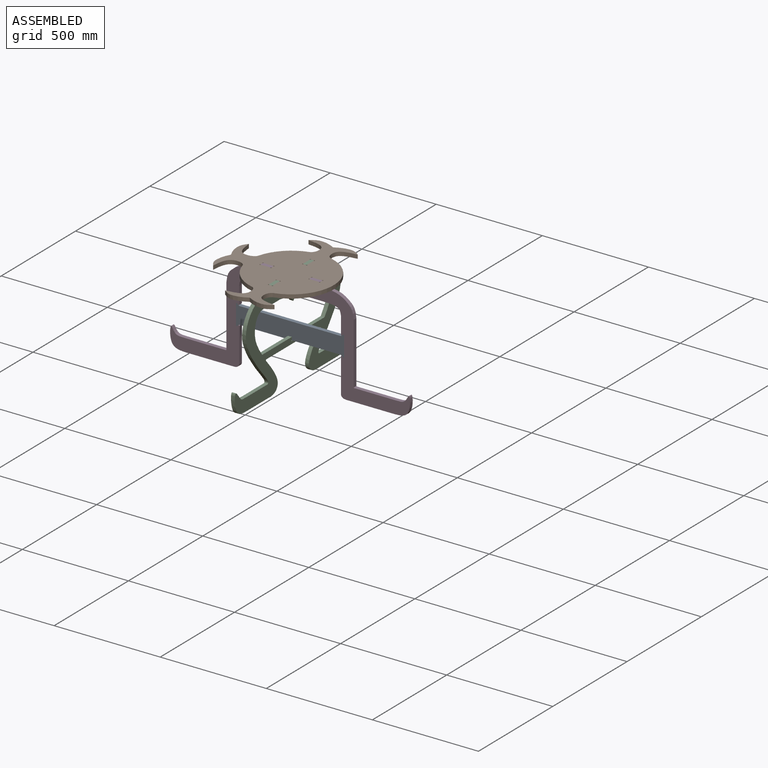
[diagram: assembled view]
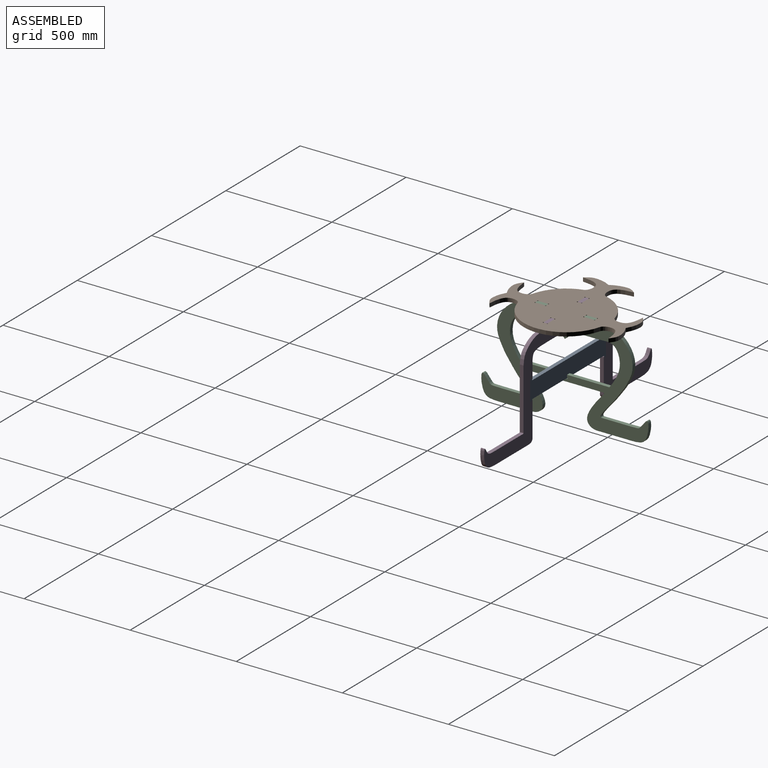
[diagram: assembled view, second angle]
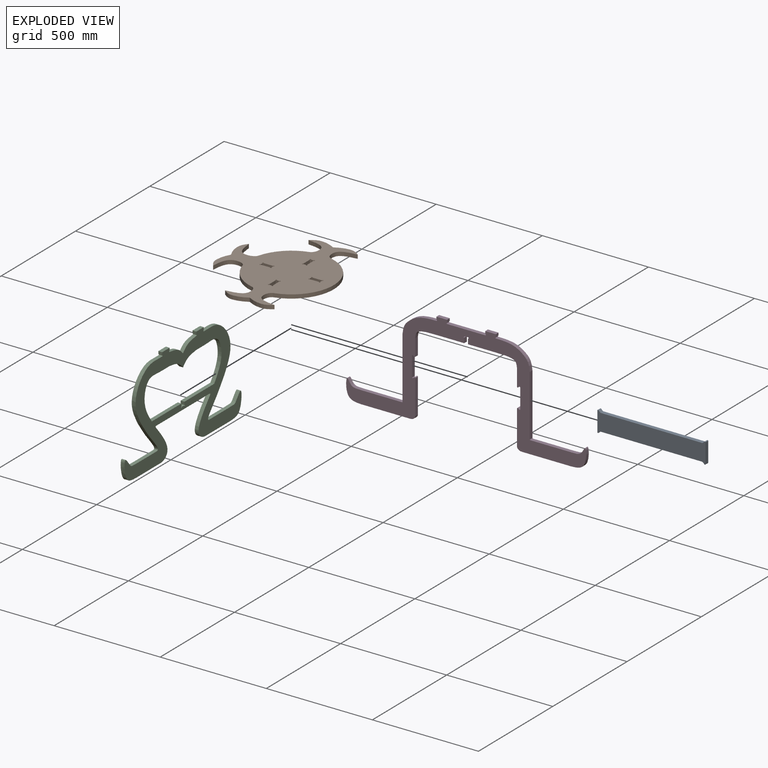
[diagram: exploded view]
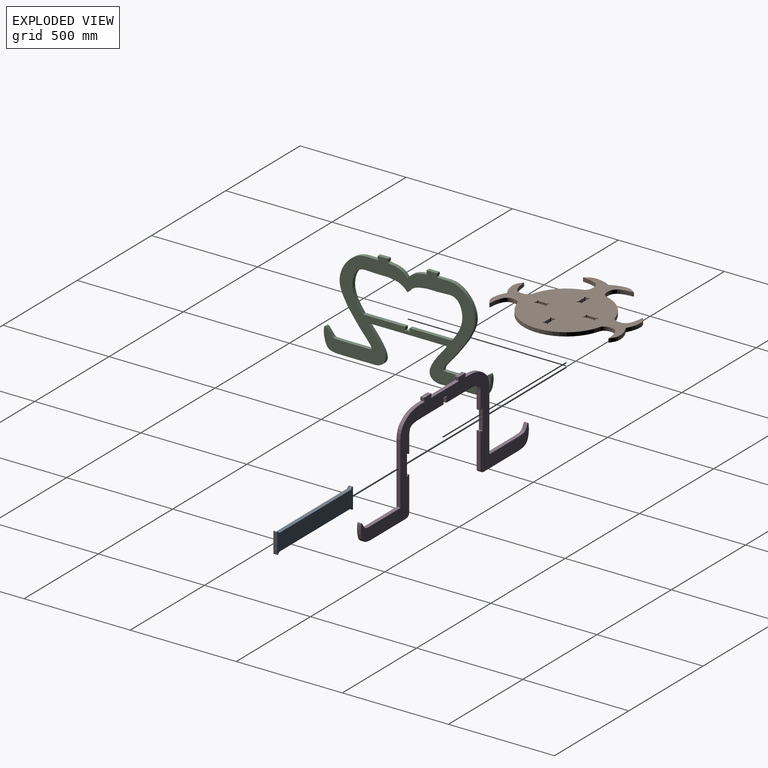
[diagram: exploded view, second angle]
ASSEMBLY  parts=4 mates=3
PART A: 18 faces, bbox 510x98.3x18 mm
  f0: plane 477.82x18mm, normal (0,1,0), area 8600.7mm2, adj f8,f9,f10,f17
  f1: plane 18x9.24mm, normal (0.64,0.77,0), area 217mm2, adj f8,f9,f10,f11
  f2: plane 92.31x18mm, normal (-1,0,0), area 1661.5mm2, adj f8,f9,f11,f12
  f3: plane 18x9.24mm, normal (0.64,-0.77,0), area 217mm2, adj f8,f9,f12,f13
  f4: plane 477.82x18mm, normal (0,-1,0), area 8600.7mm2, adj f8,f9,f13,f14
  f5: plane 18x9.24mm, normal (-0.64,-0.77,0), area 217mm2, adj f8,f9,f14,f15
  f6: plane 92.31x18mm, normal (1,0,0), area 1661.5mm2, adj f8,f9,f15,f16
  f7: plane 18x9.24mm, normal (-0.64,0.77,0), area 217mm2, adj f8,f9,f16,f17
  f8: plane 510x98.31mm, normal (0,0,1), area 41141.8mm2, adj f0,f1,f2,f3,f4,f5,f6,f7
  f9: plane 510x98.31mm, normal (0,0,-1), area 41141.8mm2, adj f0,f1,f2,f3,f4,f5,f6,f7
  f10: cylinder r=3mm len=18mm, axis (0,0,1), area 37.7mm2, adj f0,f1,f8,f9
  f11: cylinder r=3mm len=18mm, axis (0,0,-1), area 122.5mm2, adj f1,f2,f8,f9
  f12: cylinder r=3mm len=18mm, axis (0,0,-1), area 122.5mm2, adj f2,f3,f8,f9
  f13: cylinder r=3mm len=18mm, axis (0,0,1), area 37.7mm2, adj f3,f4,f8,f9
  f14: cylinder r=3mm len=18mm, axis (0,0,-1), area 37.7mm2, adj f4,f5,f8,f9
  f15: cylinder r=3mm len=18mm, axis (0,0,-1), area 122.5mm2, adj f5,f6,f8,f9
  f16: cylinder r=3mm len=18mm, axis (0,0,-1), area 122.5mm2, adj f6,f7,f8,f9
  f17: cylinder r=3mm len=18mm, axis (0,0,-1), area 37.7mm2, adj f0,f7,f8,f9
PART B: 49 faces, bbox 507.1x18x606.2 mm
  f0: plane 44x18mm, normal (0,0,1), area 792mm2, adj f1,f46,f47,f48
  f1: cylinder r=3mm len=18mm, axis (0,1,0), area 254.5mm2, adj f0,f2,f47,f48
  f2: plane 18x12mm, normal (1,0,0), area 216mm2, adj f1,f3,f47,f48
  f3: cylinder r=3mm len=18mm, axis (0,1,0), area 254.5mm2, adj f2,f4,f47,f48
  f4: plane 44x18mm, normal (0,0,-1), area 792mm2, adj f3,f5,f47,f48
  f5: cylinder r=3mm len=18mm, axis (0,1,0), area 254.5mm2, adj f4,f6,f47,f48
  f6: plane 18x12mm, normal (-1,0,0), area 216mm2, adj f5,f46,f47,f48
  f7: plane 44x18mm, normal (0,0,-1), area 792mm2, adj f8,f42,f47,f48
  f8: cylinder r=3mm len=18mm, axis (0,1,0), area 254.5mm2, adj f7,f9,f47,f48
  f9: plane 18x12mm, normal (-1,0,0), area 216mm2, adj f8,f10,f47,f48
  f10: cylinder r=3mm len=18mm, axis (0,1,0), area 254.5mm2, adj f9,f11,f47,f48
  f11: plane 44x18mm, normal (0,0,1), area 792mm2, adj f10,f12,f47,f48
  f12: cylinder r=3mm len=18mm, axis (0,1,0), area 254.5mm2, adj f11,f13,f47,f48
  f13: plane 18x12mm, normal (1,0,0), area 216mm2, adj f12,f42,f47,f48
  f14: plane 44x18mm, normal (1,0,0), area 792mm2, adj f15,f43,f47,f48
  f15: cylinder r=3mm len=18mm, axis (0,1,0), area 254.5mm2, adj f14,f16,f47,f48
  f16: plane 18x12mm, normal (0,0,-1), area 216mm2, adj f15,f17,f47,f48
  f17: cylinder r=3mm len=18mm, axis (0,1,0), area 254.5mm2, adj f16,f18,f47,f48
  f18: plane 44x18mm, normal (-1,0,0), area 792mm2, adj f17,f19,f47,f48
  f19: cylinder r=3mm len=18mm, axis (0,1,0), area 254.5mm2, adj f18,f20,f47,f48
  f20: plane 18x12mm, normal (0,0,1), area 216mm2, adj f19,f43,f47,f48
  f21: cylinder r=3mm len=18mm, axis (0,1,0), area 254.5mm2, adj f22,f44,f47,f48
  f22: plane 44x18mm, normal (1,0,0), area 792mm2, adj f21,f23,f47,f48
  f23: cylinder r=3mm len=18mm, axis (0,1,0), area 254.5mm2, adj f22,f24,f47,f48
  f24: plane 18x12mm, normal (0,0,-1), area 216mm2, adj f23,f25,f47,f48
  f25: cylinder r=3mm len=18mm, axis (0,1,0), area 254.5mm2, adj f24,f26,f47,f48
  f26: plane 44x18mm, normal (-1,0,0), area 792mm2, adj f25,f27,f47,f48
  f27: cylinder r=3mm len=18mm, axis (0,1,0), area 254.5mm2, adj f26,f44,f47,f48
  f28: extruded ~87.7x86.26mm, area 2853.3mm2, adj f29,f45,f47,f48
  f29: extruded ~116.19x20.77mm, area 2260.6mm2, adj f28,f30,f47,f48
  f30: extruded ~116.19x20.77mm, area 2260.6mm2, adj f29,f31,f47,f48
  f31: extruded ~87.7x86.26mm, area 2853.3mm2, adj f30,f32,f47,f48
  f32: cylinder r=200mm len=140.36mm, axis (0,1,0), area 3709.1mm2, adj f31,f33,f47,f48
  f33: extruded ~92.19x86.9mm, area 2927.5mm2, adj f32,f34,f47,f48
  f34: extruded ~120.27x20.75mm, area 2331.7mm2, adj f33,f35,f47,f48
  f35: extruded ~120.27x20.75mm, area 2331.7mm2, adj f34,f36,f47,f48
  f36: extruded ~92.19x86.9mm, area 2927.5mm2, adj f35,f37,f47,f48
  f37: cylinder r=200mm len=139.88mm, axis (0,1,0), area 3700.2mm2, adj f36,f38,f47,f48
  f38: extruded ~87.08x86.17mm, area 2843.7mm2, adj f37,f39,f47,f48
  f39: extruded ~116.42x20.77mm, area 2264.7mm2, adj f38,f40,f47,f48
  f40: extruded ~116.42x20.77mm, area 2264.7mm2, adj f39,f41,f47,f48
  f41: extruded ~87.08x86.17mm, area 2843.7mm2, adj f40,f45,f47,f48
  f42: cylinder r=3mm len=18mm, axis (0,1,0), area 254.5mm2, adj f7,f13,f47,f48
  f43: cylinder r=3mm len=18mm, axis (0,1,0), area 254.5mm2, adj f14,f20,f47,f48
  f44: plane 18x12mm, normal (0,0,1), area 216mm2, adj f21,f27,f47,f48
  f45: cylinder r=200mm len=386.12mm, axis (0,1,0), area 9407.5mm2, adj f28,f41,f47,f48
  f46: cylinder r=3mm len=18mm, axis (0,1,0), area 254.5mm2, adj f0,f6,f47,f48
  f47: plane 606.2x507.14mm, normal (0,-1,0), area 152632.3mm2, adj f0,f1,f2,f3,f4,f5,f6,f7
  f48: plane 606.2x507.14mm, normal (0,1,0), area 152632.3mm2, adj f0,f1,f2,f3,f4,f5,f6,f7
PART C: 44 faces, bbox 18x796.6x470.5 mm
  f0: cylinder r=3mm len=18mm, axis (-1,0,0), area 169.6mm2, adj f1,f39,f40,f41
  f1: plane 18x12mm, normal (0,1,0), area 216mm2, adj f0,f2,f40,f41
  f2: plane 50x18mm, normal (0,0,1), area 900mm2, adj f1,f3,f40,f41
  f3: plane 18x12mm, normal (0,-1,0), area 216mm2, adj f2,f4,f40,f41
  f4: cylinder r=3mm len=18mm, axis (-1,0,0), area 169.6mm2, adj f3,f5,f40,f41
  f5: extruded ~250.63x179.58mm, area 6912.1mm2, adj f4,f6,f40,f41
  f6: plane 30x21.68mm, normal (0,-0.81,-0.59), area 666.2mm2, adj f5,f7,f40,f41
  f7: extruded ~110x79.71mm, area 2538.6mm2, adj f6,f8,f40,f41
  f8: plane 133.89x18mm, normal (0,0,1), area 2410mm2, adj f7,f9,f40,f41
  f9: extruded ~102.82x85.56mm, area 4713.8mm2, adj f8,f10,f40,f41
  f10: plane 142.06x18mm, normal (0,0,-1), area 2557.1mm2, adj f9,f11,f40,f41
  f11: extruded ~165.44x79.45mm, area 4212.5mm2, adj f10,f40,f41,f42
  f12: plane 363.48x18mm, normal (0,0,-1), area 6542.7mm2, adj f40,f41,f42,f43
  f13: extruded ~165.44x79.45mm, area 4212.5mm2, adj f14,f40,f41,f43
  f14: plane 142.06x18mm, normal (0,0,-1), area 2557.1mm2, adj f13,f15,f40,f41
  f15: extruded ~102.82x85.56mm, area 4713.8mm2, adj f14,f16,f40,f41
  f16: plane 133.89x18mm, normal (0,0,1), area 2410mm2, adj f15,f17,f40,f41
  f17: extruded ~110x79.71mm, area 2538.6mm2, adj f16,f18,f40,f41
  f18: plane 30x21.68mm, normal (0,0.81,-0.59), area 666.2mm2, adj f17,f19,f40,f41
  f19: extruded ~250.63x179.58mm, area 6912.1mm2, adj f18,f20,f40,f41
  f20: cylinder r=3mm len=18mm, axis (-1,0,0), area 169.6mm2, adj f19,f21,f40,f41
  f21: plane 18x12mm, normal (0,1,0), area 216mm2, adj f20,f22,f40,f41
  f22: plane 50x18mm, normal (0,0,1), area 900mm2, adj f21,f23,f40,f41
  f23: plane 18x12mm, normal (0,-1,0), area 216mm2, adj f22,f24,f40,f41
  f24: cylinder r=3mm len=18mm, axis (-1,0,0), area 169.6mm2, adj f23,f25,f40,f41
  f25: extruded ~90x40mm, area 1831.8mm2, adj f24,f39,f40,f41
  f26: cylinder r=3mm len=18mm, axis (-1,0,0), area 254.5mm2, adj f27,f38,f40,f41
  f27: plane 18x12mm, normal (0,1,0), area 216mm2, adj f26,f28,f40,f41
  f28: plane 200x18mm, normal (0,0,1), area 3600mm2, adj f27,f29,f40,f41
  f29: extruded ~192.03x119.09mm, area 5328.8mm2, adj f28,f30,f40,f41
  f30: plane 50x18mm, normal (0,0,-1), area 900mm2, adj f29,f31,f40,f41
  f31: extruded ~90x40mm, area 1834mm2, adj f30,f32,f40,f41
  f32: extruded ~90x40mm, area 1834mm2, adj f31,f33,f40,f41
  f33: plane 50x18mm, normal (0,0,-1), area 900mm2, adj f32,f34,f40,f41
  f34: extruded ~192.03x119.09mm, area 5328.8mm2, adj f33,f35,f40,f41
  f35: plane 200x18mm, normal (0,0,1), area 3600mm2, adj f34,f36,f40,f41
  f36: plane 18x12mm, normal (0,-1,0), area 216mm2, adj f35,f37,f40,f41
  f37: cylinder r=3mm len=18mm, axis (-1,0,0), area 254.5mm2, adj f36,f38,f40,f41
  f38: plane 18x14mm, normal (0,0,1), area 252mm2, adj f26,f37,f40,f41
  f39: extruded ~90x40mm, area 1831.8mm2, adj f0,f25,f40,f41
  f40: plane 796.63x470.48mm, normal (1,0,0), area 119505.8mm2, adj f0,f1,f2,f3,f4,f5,f6,f7
  f41: plane 796.63x470.48mm, normal (-1,0,0), area 119505.8mm2, adj f0,f1,f2,f3,f4,f5,f6,f7
  f42: cylinder r=3mm len=18mm, axis (-1,0,0), area 123.4mm2, adj f11,f12,f40,f41
  f43: cylinder r=3mm len=18mm, axis (-1,0,0), area 123.4mm2, adj f12,f13,f40,f41
PART D: 58 faces, bbox 1139.1x468.1x18 mm
  f0: cylinder r=3mm len=18mm, axis (0,0,-1), area 169.6mm2, adj f1,f41,f42,f43
  f1: plane 18x12mm, normal (1,0,0), area 216mm2, adj f0,f2,f42,f43
  f2: plane 50x18mm, normal (0,1,0), area 900mm2, adj f1,f3,f42,f43
  f3: plane 18x12mm, normal (-1,0,0), area 216mm2, adj f2,f4,f42,f43
  f4: cylinder r=3mm len=18mm, axis (0,0,-1), area 169.6mm2, adj f3,f5,f42,f43
  f5: extruded ~160x100mm, area 3819.6mm2, adj f4,f6,f42,f43
  f6: plane 287x18mm, normal (-1,0,0), area 5166mm2, adj f5,f42,f43,f44
  f7: plane 192.25x18mm, normal (0,1,0), area 3460.4mm2, adj f8,f42,f43,f44
  f8: extruded ~94.18x70.24mm, area 4028.9mm2, adj f7,f9,f42,f43
  f9: plane 230x18mm, normal (0,-1,0), area 4140mm2, adj f8,f10,f42,f43
  f10: extruded ~25.42x24.95mm, area 755.6mm2, adj f9,f42,f43,f45
  f11: plane 153.51x18mm, normal (1,0,0), area 2763.2mm2, adj f42,f43,f45,f46
  f12: plane 18x5.14mm, normal (-0.64,0.77,0), area 120.9mm2, adj f42,f43,f46,f54
  f13: plane 92.31x18mm, normal (1,0,0), area 1661.5mm2, adj f42,f43,f54,f55
  f14: plane 18x5.14mm, normal (-0.64,-0.77,0), area 120.9mm2, adj f42,f43,f47,f55
  f15: plane 78.31x18mm, normal (1,0,0), area 1409.6mm2, adj f42,f43,f47,f48
  f16: extruded ~99.96x39.82mm, area 2202.9mm2, adj f17,f42,f43,f48
  f17: plane 131x18mm, normal (0,-1,0), area 2358mm2, adj f16,f18,f42,f43
  f18: plane 24x18mm, normal (1,0,0), area 432mm2, adj f17,f19,f42,f43
  f19: cylinder r=3mm len=18mm, axis (0,0,-1), area 169.6mm2, adj f18,f20,f42,f43
  f20: plane 18x18mm, normal (0,-1,0), area 324mm2, adj f19,f21,f42,f43
  f21: cylinder r=3mm len=18mm, axis (0,0,-1), area 169.6mm2, adj f20,f22,f42,f43
  f22: plane 24x18mm, normal (-1,0,0), area 432mm2, adj f21,f23,f42,f43
  f23: plane 131x18mm, normal (0,-1,0), area 2358mm2, adj f22,f24,f42,f43
  f24: extruded ~99.96x39.82mm, area 2202.9mm2, adj f23,f42,f43,f49
  f25: plane 78.31x18mm, normal (-1,0,0), area 1409.6mm2, adj f42,f43,f49,f50
  f26: plane 18x5.14mm, normal (0.64,-0.77,0), area 120.9mm2, adj f42,f43,f50,f56
  f27: plane 92.31x18mm, normal (-1,0,0), area 1661.5mm2, adj f42,f43,f56,f57
  f28: plane 18x5.14mm, normal (0.64,0.77,0), area 120.9mm2, adj f42,f43,f51,f57
  f29: plane 153.51x18mm, normal (-1,0,0), area 2763.2mm2, adj f42,f43,f51,f52
  f30: extruded ~25.42x24.95mm, area 755.6mm2, adj f31,f42,f43,f52
  f31: plane 230x18mm, normal (0,-1,0), area 4140mm2, adj f30,f32,f42,f43
  f32: extruded ~94.18x70.24mm, area 4028.9mm2, adj f31,f33,f42,f43
  f33: plane 192.25x18mm, normal (0,1,0), area 3460.4mm2, adj f32,f42,f43,f53
  f34: plane 287x18mm, normal (1,0,0), area 5166mm2, adj f35,f42,f43,f53
  f35: extruded ~160x100mm, area 3819.6mm2, adj f34,f36,f42,f43
  f36: cylinder r=3mm len=18mm, axis (0,0,-1), area 169.6mm2, adj f35,f37,f42,f43
  f37: plane 18x12mm, normal (1,0,0), area 216mm2, adj f36,f38,f42,f43
  f38: plane 50x18mm, normal (0,1,0), area 900mm2, adj f37,f39,f42,f43
  f39: plane 18x12mm, normal (-1,0,0), area 216mm2, adj f38,f40,f42,f43
  f40: cylinder r=3mm len=18mm, axis (0,0,-1), area 169.6mm2, adj f39,f41,f42,f43
  f41: plane 180x18mm, normal (0,1,0), area 3240mm2, adj f0,f40,f42,f43
  f42: plane 1139.1x468.11mm, normal (0,0,1), area 108157.3mm2, adj f0,f1,f2,f3,f4,f5,f6,f7
  f43: plane 1139.1x468.11mm, normal (0,0,-1), area 108157.3mm2, adj f0,f1,f2,f3,f4,f5,f6,f7
  f44: cylinder r=3mm len=18mm, axis (0,0,1), area 84.8mm2, adj f6,f7,f42,f43
  f45: cylinder r=3mm len=18mm, axis (0,0,-1), area 2mm2, adj f10,f11,f42,f43
  f46: cylinder r=3mm len=18mm, axis (0,0,1), area 122.5mm2, adj f11,f12,f42,f43
  f47: cylinder r=3mm len=18mm, axis (0,0,1), area 122.5mm2, adj f14,f15,f42,f43
  f48: cylinder r=3mm len=18mm, axis (0,0,-1), area 9.2mm2, adj f15,f16,f42,f43
  f49: cylinder r=3mm len=18mm, axis (0,0,-1), area 9.2mm2, adj f24,f25,f42,f43
  f50: cylinder r=3mm len=18mm, axis (0,0,1), area 122.5mm2, adj f25,f26,f42,f43
  f51: cylinder r=3mm len=18mm, axis (0,0,1), area 122.5mm2, adj f28,f29,f42,f43
  f52: cylinder r=3mm len=18mm, axis (0,0,-1), area 2mm2, adj f29,f30,f42,f43
  f53: cylinder r=3mm len=18mm, axis (0,0,1), area 84.8mm2, adj f33,f34,f42,f43
  f54: cylinder r=3mm len=18mm, axis (0,0,1), area 122.5mm2, adj f12,f13,f42,f43
  f55: cylinder r=3mm len=18mm, axis (0,0,1), area 122.5mm2, adj f13,f14,f42,f43
  f56: cylinder r=3mm len=18mm, axis (0,0,1), area 122.5mm2, adj f26,f27,f42,f43
  f57: cylinder r=3mm len=18mm, axis (0,0,1), area 122.5mm2, adj f27,f28,f42,f43
PLACE A rot(axis=(1,0,0),90deg) t=(3,-184,39)mm
PLACE B rot(axis=(-1,0,0),90deg) t=(3,7,224)mm
PLACE C t=(-6,-193,224)mm
PLACE D rot(axis=(1,0,0),90deg) t=(3,-184,224)mm
MATE fastened D.f3 <-> B.f13  axis (-1,0,0) through (-137,-193,242)mm
MATE fastened B.f24 <-> C.f21  axis (0,-1,0) through (3,-53,242)mm
MATE fastened A.f2 <-> D.f13  axis (-1,0,0) through (-252,-193,-1)mm
